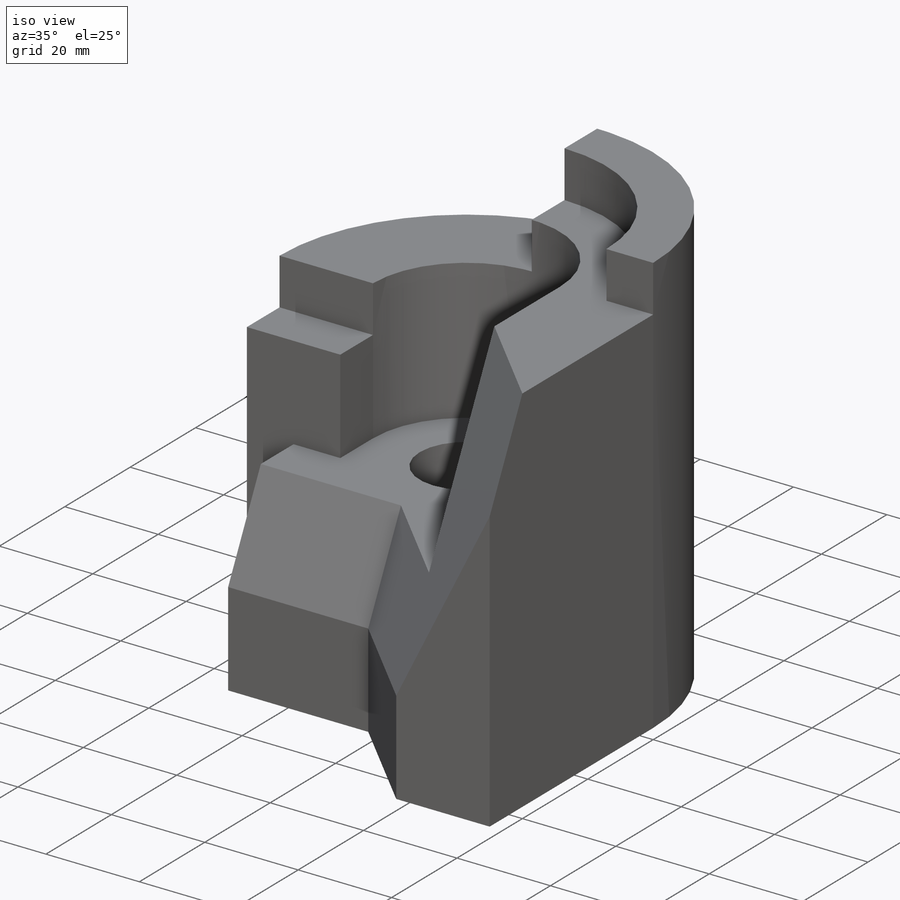
[diagram: iso view]
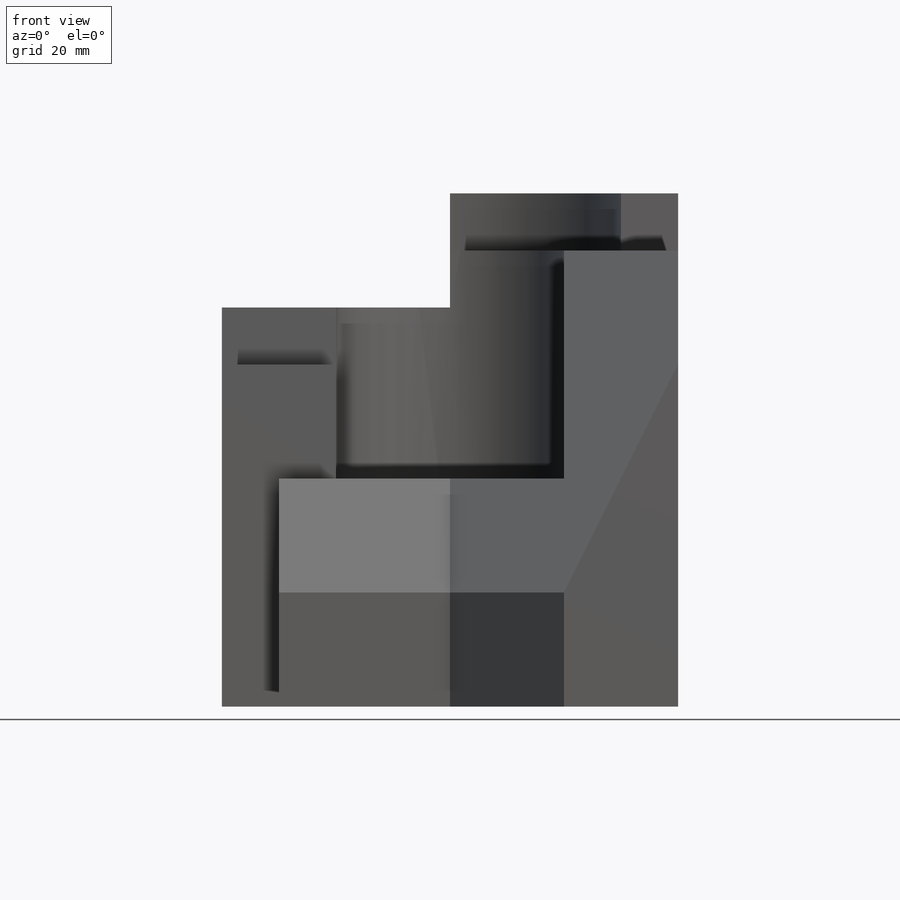
[diagram: front view]
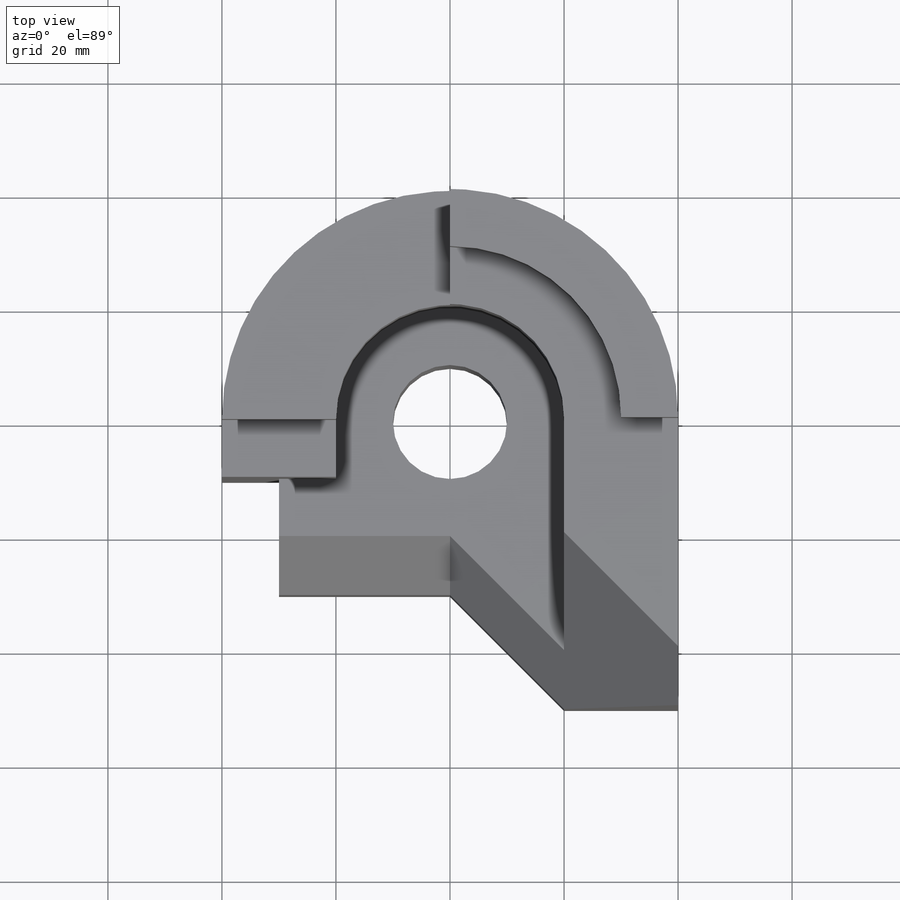
[diagram: top view]
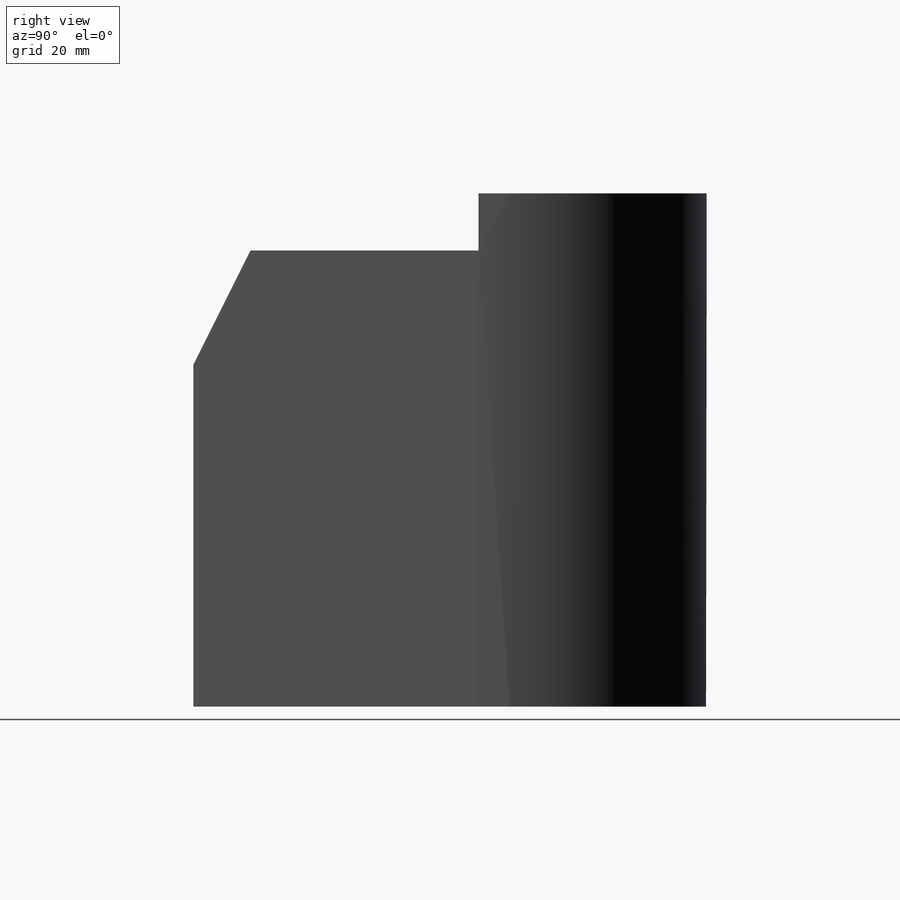
[diagram: right view]
SOLIDWORKS PART (.sldprt)
format: sldprt  version: not decoded by parser v0  size: 310,784 bytes
history: native  units: mm
features: sketch x9, cut_extrude x7, extrude x2, material x1, plane x1 (+13 scaffold rows collapsed)
feature tree (33):
  scaffold x13  (default folders/planes/origin — collapsed)
  material  "Material <not specified>"
  sketch  "Sketch1"  dims[D7=40.0mm D1=50.0mm D2=20.0mm D3=20.0mm D4=30.0mm D5=10.0mm D6=20.0mm]
  extrude  "Boss-Extrude1"  Depth=90mm
  sketch  "Sketch2"  dims[D1=20.0mm]
  cut_extrude  "Cut-Extrude1"  Depth=90mm
  sketch  "Sketch3"  dims[D1=30.0mm D3=20.0mm D2=10.0mm D4=20.0mm D5=40.0mm D6=20.0mm]
  cut_extrude  "Cut-Extrude2"  Depth=10mm
  sketch  "Sketch4"  dims[D1=32.5mm]
  cut_extrude  "Cut-Extrude3"  Depth=20mm
  plane  "Plane1"  Offset=70mm
  sketch  "Sketch11"
  extrude  "Boss-Extrude2"  Depth=70mm
  sketch  "Sketch12"  dims[D1=20.0mm D2=~9.986072mm]
  cut_extrude  "Cut-Extrude11"  Depth=10mm
  sketch  "Sketch21"
  cut_extrude  "Cut-Extrude25"  Depth=30mm
  sketch  "Sketch22"  dims[D1=10.0mm D2=20.0mm]
  cut_extrude  "Cut-Extrude26"  Depth=30mm
  sketch  "3DSketch3"  dims[D1=20.0mm D2=30.0mm D3=40.0mm]
  cut_extrude  "Cut-Extrude27"  Depth=83mm
decode coverage: 16 of 18 modeling features carry decoded parameters
note: ~ marks probable driven/reference dimensions
note: suppression state not decoded; provenance and decode notes live in map.json
